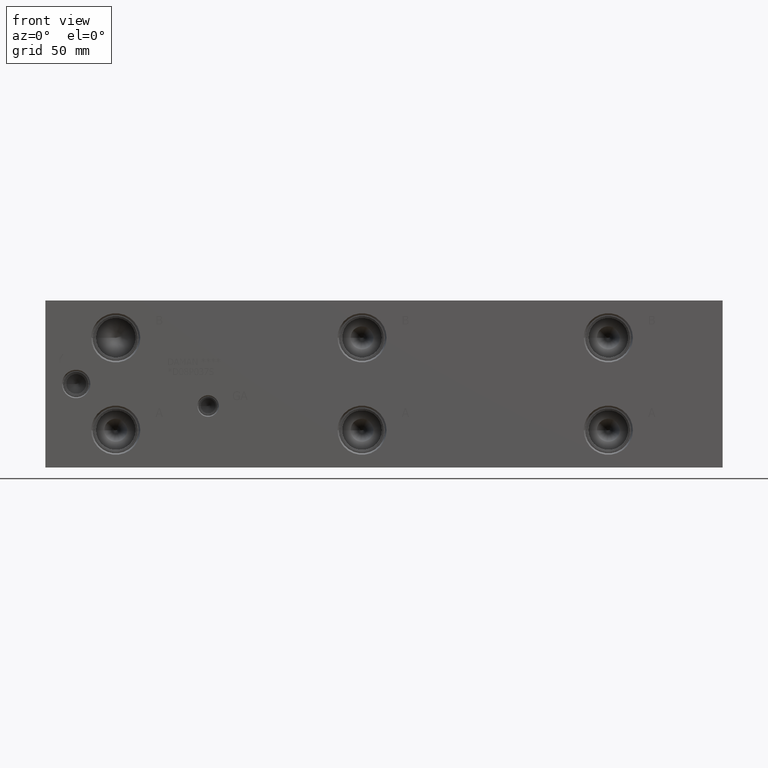
[diagram: clean part render]
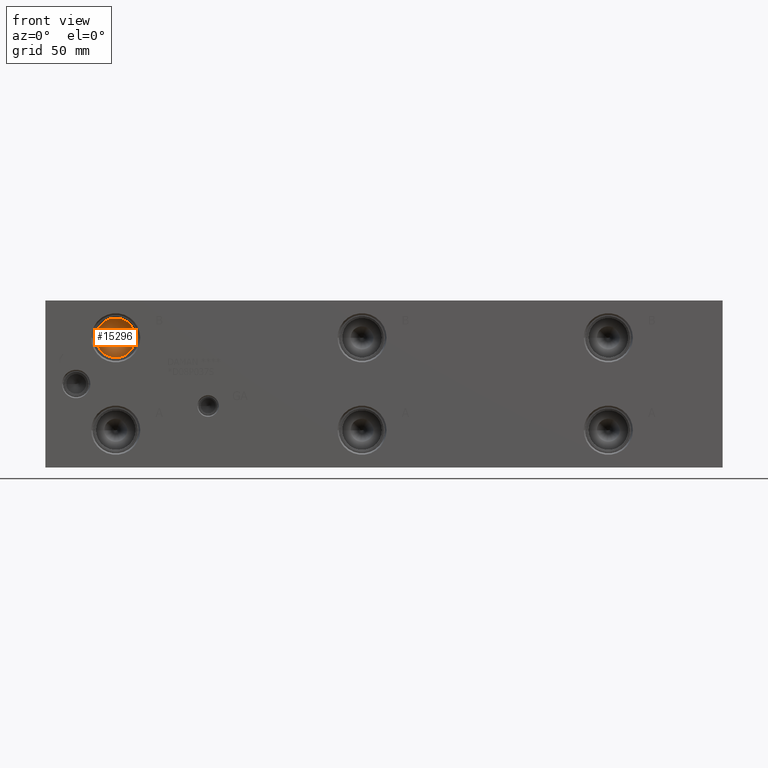
[diagram: same view with one face highlighted and labeled with its STEP entity id]
A machine part, front view. The second image highlights one B-rep face of the part: STEP entity #15296.
In plain terms, the highlighted conical surface has half-angle 60 deg.
Its self-contained STEP definition (entity closure, byte-faithful):
#207=CONICAL_SURFACE('',#16205,7.14375,1.0471975511966);
#507=CIRCLE('',#16206,14.2875);
#508=CIRCLE('',#16207,14.2875);
#1964=FACE_OUTER_BOUND('',#2868,.T.);
#2868=EDGE_LOOP('',(#13256,#13257,#13258,#13259));
#4265=LINE('',#26092,#5579);
#5579=VECTOR('',#19304,7.14375);
#7258=VERTEX_POINT('',#26088);
#7259=VERTEX_POINT('',#26089);
#7260=VERTEX_POINT('',#26091);
#9333=EDGE_CURVE('',#7258,#7259,#507,.T.);
#9334=EDGE_CURVE('',#7259,#7260,#4265,.T.);
#9335=EDGE_CURVE('',#7259,#7258,#508,.T.);
#13256=ORIENTED_EDGE('',*,*,#9333,.T.);
#13257=ORIENTED_EDGE('',*,*,#9334,.T.);
#13258=ORIENTED_EDGE('',*,*,#9334,.F.);
#13259=ORIENTED_EDGE('',*,*,#9335,.T.);
#15296=ADVANCED_FACE('',(#1964),#207,.F.);
#16205=AXIS2_PLACEMENT_3D('',#26087,#19300,#19301);
#16206=AXIS2_PLACEMENT_3D('',#26090,#19302,#19303);
#16207=AXIS2_PLACEMENT_3D('',#26093,#19305,#19306);
#19300=DIRECTION('center_axis',(0.,-1.,0.));
#19301=DIRECTION('ref_axis',(1.,0.,0.));
#19302=DIRECTION('center_axis',(0.,-1.,0.));
#19303=DIRECTION('ref_axis',(1.,0.,0.));
#19304=DIRECTION('',(0.866025403784438,0.5,1.06057523872491E-16));
#19305=DIRECTION('center_axis',(0.,-1.,0.));
#19306=DIRECTION('ref_axis',(1.,0.,0.));
#26087=CARTESIAN_POINT('Origin',(50.8,36.7725059855234,93.6752));
#26088=CARTESIAN_POINT('',(65.0875,32.64806,93.6752));
#26089=CARTESIAN_POINT('',(36.5125,32.64806,93.6752));
#26090=CARTESIAN_POINT('Origin',(50.8,32.64806,93.6752));
#26091=CARTESIAN_POINT('',(50.8,40.8969519710468,93.6752));
#26092=CARTESIAN_POINT('',(43.65625,36.7725059855234,93.6752));
#26093=CARTESIAN_POINT('Origin',(50.8,32.64806,93.6752));